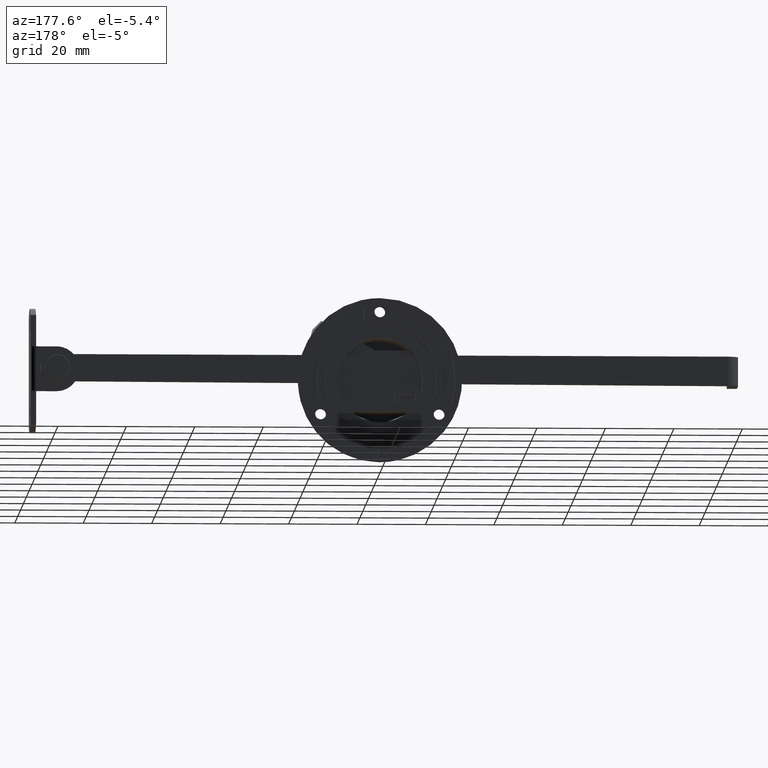
[diagram: clean part render]
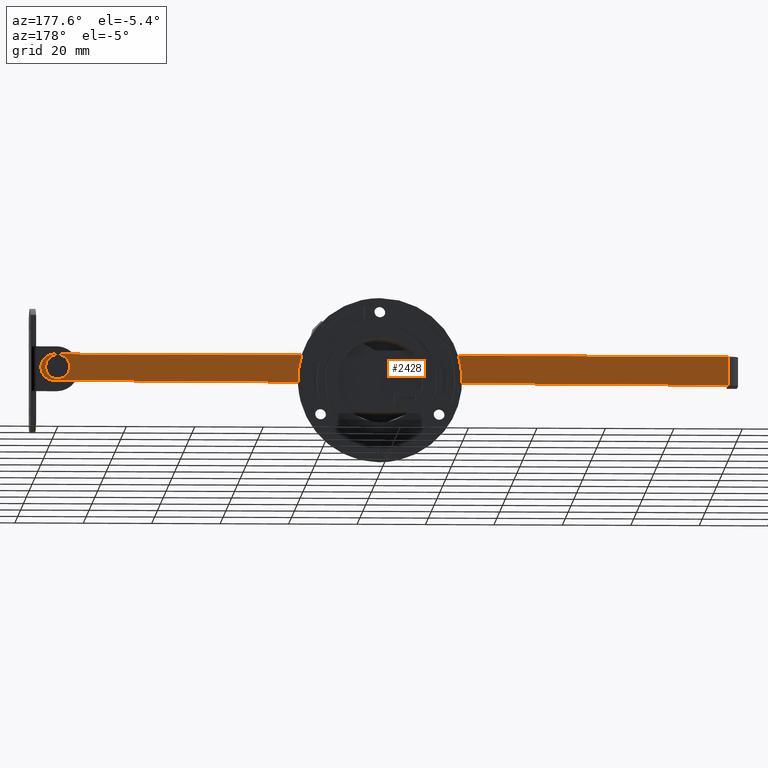
[diagram: same view with one face highlighted and labeled with its STEP entity id]
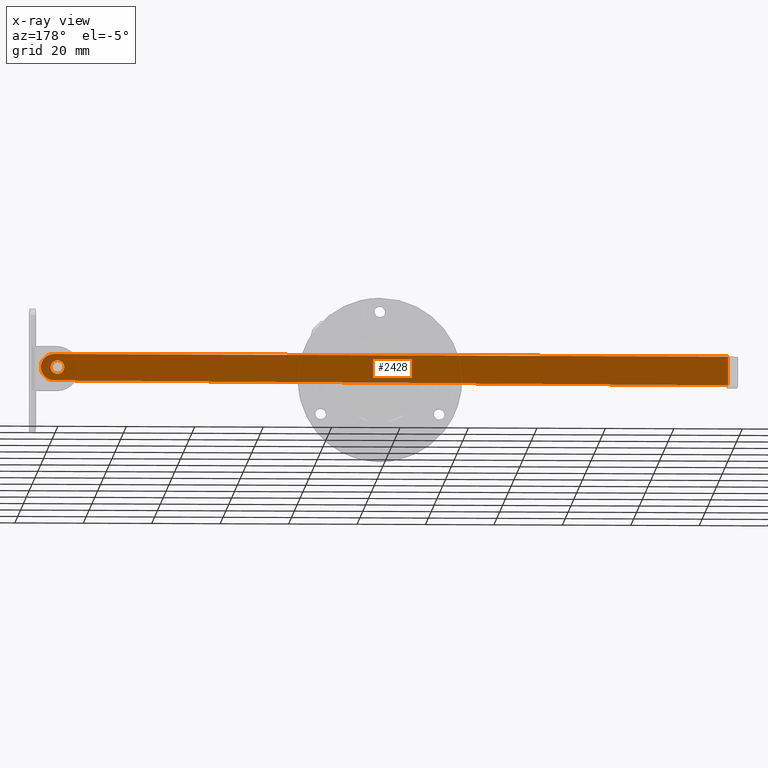
[diagram: x-ray of the same camera — body ghosted, the highlighted face saturated]
A machine part, auxiliary view. The second image highlights one B-rep face of the part: STEP entity #2428.
The next image is the same camera in x-ray: the body ghosted, the highlighted face saturated — about 0% of this face is hidden behind the body in this view.
In plain terms, the highlighted face is a freeform B-spline surface patch.
Its self-contained STEP definition (entity closure, byte-faithful):
#1864=CARTESIAN_POINT('',(92.502088245921129,-6.0,2.624759627134307));
#1865=VERTEX_POINT('',#1864);
#1871=CARTESIAN_POINT('',(94.0,-6.0,5.950000417295145));
#1872=VERTEX_POINT('',#1871);
#1873=CARTESIAN_POINT('',(92.502088245921129,-6.000000000000001,2.624759627134314));
#1874=CARTESIAN_POINT('',(91.999999582749950,-6.0,3.192267624571756));
#1875=CARTESIAN_POINT('',(91.999999582749950,-6.0,3.950000000045095));
#1876=CARTESIAN_POINT('',(91.999999582749965,-6.0,5.950000417295144));
#1877=CARTESIAN_POINT('',(94.0,-6.0,5.950000417295145));
#1885=(BOUNDED_CURVE()B_SPLINE_CURVE(2,(#1873,#1874,#1875,#1876,#1877),.UNSPECIFIED.,.F.,.U.)B_SPLINE_CURVE_WITH_KNOTS((3,2,3),(0.634220111940322,0.750000000000000,1.0),.UNSPECIFIED.)CURVE()GEOMETRIC_REPRESENTATION_ITEM()RATIONAL_B_SPLINE_CURVE((0.854350158224955,0.864355423649359,1.0,0.707106781186548,1.0))REPRESENTATION_ITEM(''));
#1886=EDGE_CURVE('',#1865,#1872,#1885,.T.);
#1888=CARTESIAN_POINT('',(95.497911754078871,-6.000000000000001,5.275240372955886));
#1889=VERTEX_POINT('',#1888);
#1890=CARTESIAN_POINT('',(94.0,-6.0,5.950000417295145));
#1891=CARTESIAN_POINT('',(94.900934495338163,-6.000000000000001,5.950000417295145));
#1892=CARTESIAN_POINT('',(95.497911754078871,-5.999999999999999,5.275240372955888));
#1900=(BOUNDED_CURVE()B_SPLINE_CURVE(2,(#1890,#1891,#1892),.UNSPECIFIED.,.F.,.U.)B_SPLINE_CURVE_WITH_KNOTS((3,3),(0.0,0.134220111940321),.UNSPECIFIED.)CURVE()GEOMETRIC_REPRESENTATION_ITEM()RATIONAL_B_SPLINE_CURVE((1.0,0.842751357537190,0.854350158224955))REPRESENTATION_ITEM(''));
#1901=EDGE_CURVE('',#1872,#1889,#1900,.T.);
#1935=CARTESIAN_POINT('',(94.0,-6.0,1.949999582795045));
#1936=VERTEX_POINT('',#1935);
#1937=CARTESIAN_POINT('',(95.497911754078871,-6.000000000000001,5.275240372955887));
#1938=CARTESIAN_POINT('',(96.000000417250035,-5.999999999999999,4.707732375518442));
#1939=CARTESIAN_POINT('',(96.000000417250050,-6.0,3.950000000045095));
#1940=CARTESIAN_POINT('',(96.000000417250050,-6.0,1.949999582795045));
#1941=CARTESIAN_POINT('',(94.0,-6.0,1.949999582795045));
#1949=(BOUNDED_CURVE()B_SPLINE_CURVE(2,(#1937,#1938,#1939,#1940,#1941),.UNSPECIFIED.,.F.,.U.)B_SPLINE_CURVE_WITH_KNOTS((3,2,3),(0.134220111940321,0.250000000000000,0.500000000000000),.UNSPECIFIED.)CURVE()GEOMETRIC_REPRESENTATION_ITEM()RATIONAL_B_SPLINE_CURVE((0.854350158224955,0.864355423649357,1.0,0.707106781186548,1.0))REPRESENTATION_ITEM(''));
#1950=EDGE_CURVE('',#1889,#1936,#1949,.T.);
#1952=CARTESIAN_POINT('',(94.0,-6.0,1.949999582795045));
#1953=CARTESIAN_POINT('',(93.099065504661823,-6.000000000000001,1.949999582795045));
#1954=CARTESIAN_POINT('',(92.502088245921144,-6.000000000000002,2.624759627134312));
#1962=(BOUNDED_CURVE()B_SPLINE_CURVE(2,(#1952,#1953,#1954),.UNSPECIFIED.,.F.,.U.)B_SPLINE_CURVE_WITH_KNOTS((3,3),(0.500000000000000,0.634220111940322),.UNSPECIFIED.)CURVE()GEOMETRIC_REPRESENTATION_ITEM()RATIONAL_B_SPLINE_CURVE((1.0,0.842751357537189,0.854350158224955))REPRESENTATION_ITEM(''));
#1963=EDGE_CURVE('',#1936,#1865,#1962,.T.);
#2161=CARTESIAN_POINT('',(94.999997028308613,-6.0,7.799999788400020));
#2162=VERTEX_POINT('',#2161);
#2168=CARTESIAN_POINT('',(-101.999996721800000,-6.0,7.799999788400020));
#2169=VERTEX_POINT('',#2168);
#2170=CARTESIAN_POINT('',(-101.999996721800000,-6.0,7.799999788400020));
#2171=CARTESIAN_POINT('',(94.999997028308613,-6.0,7.799999788400020));
#2172=QUASI_UNIFORM_CURVE('',1,(#2170,#2171),.UNSPECIFIED.,.F.,.U.);
#2173=EDGE_CURVE('',#2169,#2162,#2172,.T.);
#2257=CARTESIAN_POINT('',(-101.999998092700000,-6.000000052099890,-0.600000028500091));
#2258=VERTEX_POINT('',#2257);
#2280=CARTESIAN_POINT('',(-101.999996721800000,-6.0,7.799999788400020));
#2281=CARTESIAN_POINT('',(-101.999998092700000,-6.000000052099890,-0.600000028500091));
#2282=QUASI_UNIFORM_CURVE('',1,(#2280,#2281),.UNSPECIFIED.,.F.,.U.);
#2283=EDGE_CURVE('',#2169,#2258,#2282,.T.);
#2388=CARTESIAN_POINT('',(108.859618556049200,-6.0,-1.019580003073423));
#2389=CARTESIAN_POINT('',(-112.031373985482300,-6.0,-1.019580003073423));
#2390=CARTESIAN_POINT('',(108.859618556049200,-6.0,8.219579988278904));
#2391=CARTESIAN_POINT('',(-112.031373985482300,-6.0,8.219579988278904));
#2392=B_SPLINE_SURFACE_WITH_KNOTS('',1,1,((#2388,#2390),(#2389,#2391)),.UNSPECIFIED.,.F.,.F.,.U.,(2,2),(2,2),(0.0,220.890992541531490),(0.0,9.239159991352327),.UNSPECIFIED.);
#2393=ORIENTED_EDGE('',*,*,#2173,.T.);
#2394=CARTESIAN_POINT('',(95.013676670109803,-6.0,0.100024299229727));
#2395=VERTEX_POINT('',#2394);
#2396=CARTESIAN_POINT('',(94.999997028308613,-6.0,7.799999788400020));
#2397=CARTESIAN_POINT('',(95.314603930464202,-6.000000000000005,7.800072344374688));
#2398=CARTESIAN_POINT('',(95.943797370262146,-5.999999999999996,7.722448243484046));
#2399=CARTESIAN_POINT('',(96.831234482564895,-6.000000000000004,7.380650332658845));
#2400=CARTESIAN_POINT('',(97.635090437393146,-6.000000000000004,6.815354977633080));
#2401=CARTESIAN_POINT('',(98.228532460892225,-5.999999999999996,6.111384641878957));
#2402=CARTESIAN_POINT('',(98.713257514158556,-6.000000000000025,5.151897913949902));
#2403=CARTESIAN_POINT('',(98.902323357280039,-5.999999999999942,4.145759956878642));
#2404=CARTESIAN_POINT('',(98.792122834158022,-6.000000000000040,3.138756708945388));
#2405=CARTESIAN_POINT('',(98.526217331383421,-5.999999999999956,2.327695696811618));
#2406=CARTESIAN_POINT('',(98.104182946801146,-6.000000000000055,1.619786553005570));
#2407=CARTESIAN_POINT('',(97.408655300218157,-5.999999999999965,0.885031552927038));
#2408=CARTESIAN_POINT('',(96.397199271531989,-6.000000000000030,0.274763737579889));
#2409=CARTESIAN_POINT('',(95.485646962146888,-6.000000000000017,0.101316349940048));
#2410=CARTESIAN_POINT('',(95.013676670109803,-6.0,0.100024299229727));
#2411=B_SPLINE_CURVE_WITH_KNOTS('',3,(#2396,#2397,#2398,#2399,#2400,#2401,#2402,#2403,#2404,#2405,#2406,#2407,#2408,#2409,#2410),.UNSPECIFIED.,.F.,.U.,(4,1,1,1,1,1,1,1,1,1,1,1,4),(0.000000658572256,0.943827653582970,1.887740060600896,2.831663274622667,3.869952171982646,4.625128643687547,6.040877353998368,6.890347753315209,7.645401686609987,8.589342149787369,9.344490565659385,10.665944082431171,12.081754207336649),.UNSPECIFIED.);
#2412=EDGE_CURVE('',#2162,#2395,#2411,.T.);
#2413=ORIENTED_EDGE('',*,*,#2412,.T.);
#2414=CARTESIAN_POINT('',(95.013676670109803,-6.0,0.100024299229727));
#2415=CARTESIAN_POINT('',(-101.999998092700000,-6.000000052099890,-0.600000028500091));
#2416=QUASI_UNIFORM_CURVE('',1,(#2414,#2415),.UNSPECIFIED.,.F.,.U.);
#2417=EDGE_CURVE('',#2395,#2258,#2416,.T.);
#2418=ORIENTED_EDGE('',*,*,#2417,.T.);
#2419=ORIENTED_EDGE('',*,*,#2283,.F.);
#2420=EDGE_LOOP('',(#2393,#2413,#2418,#2419));
#2421=FACE_OUTER_BOUND('',#2420,.T.);
#2422=ORIENTED_EDGE('',*,*,#1901,.F.);
#2423=ORIENTED_EDGE('',*,*,#1886,.F.);
#2424=ORIENTED_EDGE('',*,*,#1963,.F.);
#2425=ORIENTED_EDGE('',*,*,#1950,.F.);
#2426=EDGE_LOOP('',(#2422,#2423,#2424,#2425));
#2427=FACE_BOUND('',#2426,.T.);
#2428=ADVANCED_FACE('',(#2421,#2427),#2392,.T.);